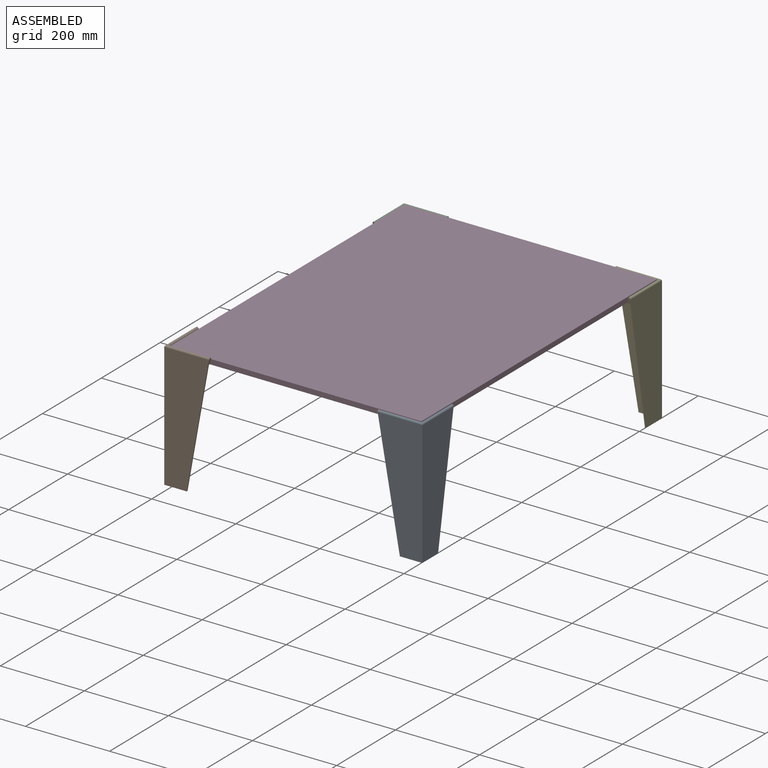
[diagram: assembled view]
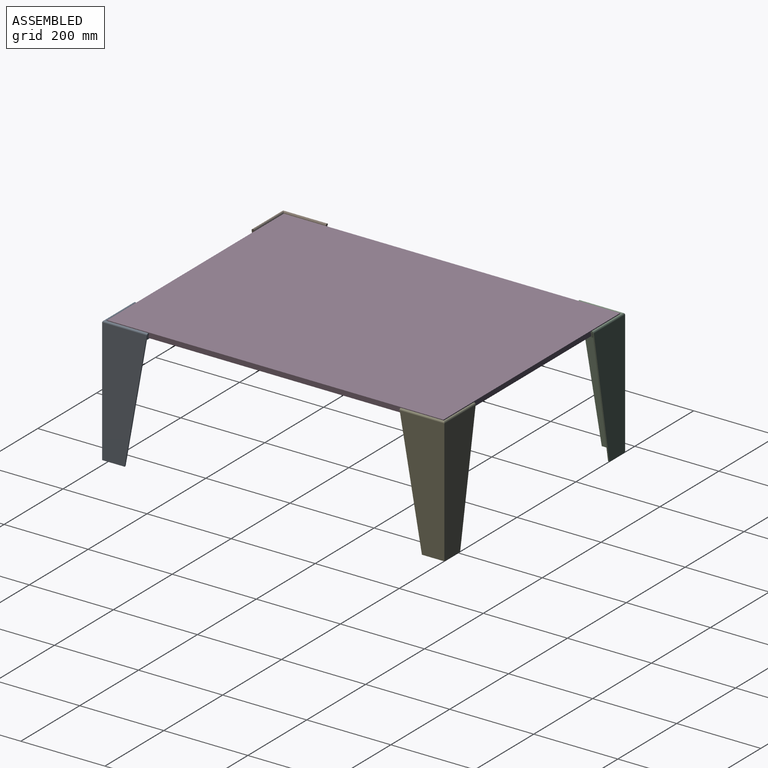
[diagram: assembled view, second angle]
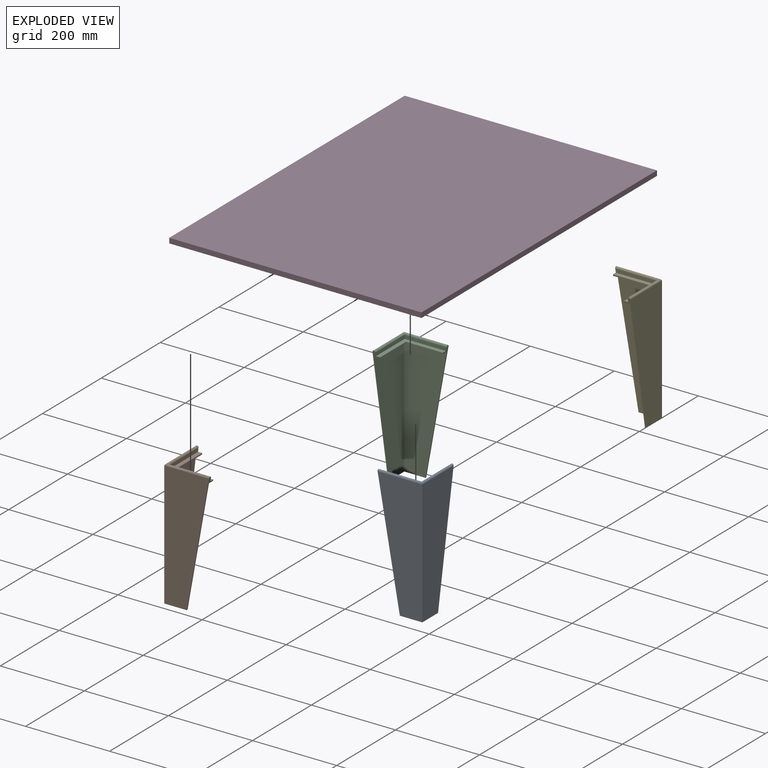
[diagram: exploded view]
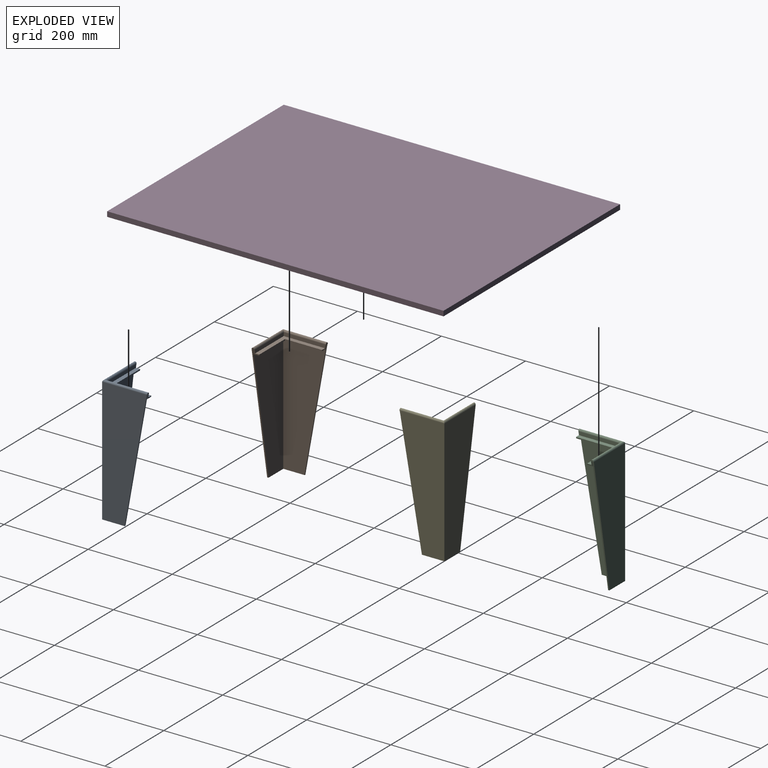
[diagram: exploded view, second angle]
ASSEMBLY  parts=5 mates=4
PART A: 24 faces, bbox 107x107x300 mm
  f0: plane 296x106.29mm, normal (-1,0,0), area 23648.4mm2, adj f8,f9,f16,f23
  f1: plane 103x12mm, normal (-1,0,0), area 1217.4mm2, adj f3,f6,f10,f13,f20,f21
  f2: plane 99.29x8mm, normal (1,0,0), area 788.6mm2, adj f4,f11,f15,f21
  f3: plane 7x3.97mm, normal (0,1,0), area 20.1mm2, adj f1,f7,f13,f15,f16,f20,f22
  f4: plane 97.86x97.86mm, normal (0,0,1), area 1857.2mm2, adj f2,f5,f11,f12,f19,f21
  f5: plane 87.86x3mm, normal (1,0,0), area 262.8mm2, adj f4,f6,f12,f21
  f6: plane 100.33x100.33mm, normal (0,0,-1), area 2439.5mm2, adj f1,f5,f10,f12,f19,f21
  f7: plane 297x104mm, normal (1,0,0), area 22864.4mm2, adj f3,f8,f13,f14,f22,f23
  f8: plane 53.5x53.5mm, normal (0,0,-1), area 312mm2, adj f0,f7,f9,f14,f19,f23
  f9: plane 296x106.29mm, normal (0,-1,0), area 23648.4mm2, adj f0,f8,f18,f19
  f10: plane 102.47x12mm, normal (0,-1,0), area 1216.7mm2, adj f1,f6,f13,f19
  f11: plane 99.29x8mm, normal (0,1,0), area 788.6mm2, adj f2,f4,f17,f19
  f12: plane 87.86x3mm, normal (0,1,0), area 262.8mm2, adj f4,f5,f6,f19
  f13: plane 104x103.47mm, normal (0,0,-1), area 206.5mm2, adj f1,f3,f7,f10,f14,f19
  f14: plane 297x103.47mm, normal (0,1,0), area 22863.8mm2, adj f7,f8,f13,f19
  f15: cylinder r=4mm len=103.5mm, axis (0,-1,0), area 585.4mm2, adj f2,f3,f16,f17,f20
  f16: cylinder r=4mm len=107mm, axis (0,-1,0), area 611.4mm2, adj f0,f3,f15,f18,f22
  f17: cylinder r=4mm len=103.49mm, axis (1,0,0), area 583.8mm2, adj f11,f15,f18,f19
  f18: cylinder r=4mm len=106.99mm, axis (1,0,0), area 609.8mm2, adj f9,f16,f17,f19
  f19: plane 299.97x53.49mm, normal (0.98,0,-0.18), area 986.5mm2, adj f4,f6,f8,f9,f10,f11,f12,f13
  f20: plane 3x0.71mm, normal (0,0,-1), area 2.1mm2, adj f1,f3,f15,f21
  f21: plane 13x11mm, normal (0,0.98,-0.18), area 64mm2, adj f1,f2,f4,f5,f6,f20
  f22: plane 3x0.71mm, normal (0,0,-1), area 2.1mm2, adj f3,f7,f16,f23
  f23: plane 296x52.79mm, normal (0,0.98,-0.18), area 902mm2, adj f0,f7,f8,f22
PART B: same geometry as A
PART C: same geometry as A
PART D: 6 faces, bbox 600x800x12 mm
  f0: plane 600x12mm, normal (0,-1,0), area 7200mm2, adj f1,f3,f4,f5
  f1: plane 800x12mm, normal (1,0,0), area 9600mm2, adj f0,f2,f4,f5
  f2: plane 600x12mm, normal (0,1,0), area 7200mm2, adj f1,f3,f4,f5
  f3: plane 800x12mm, normal (-1,0,0), area 9600mm2, adj f0,f2,f4,f5
  f4: plane 800x600mm, normal (0,0,1), area 480000mm2, adj f0,f1,f2,f3
  f5: plane 800x600mm, normal (0,0,-1), area 480000mm2, adj f0,f1,f2,f3
PART E: same geometry as A
PLACE A rot(axis=(0,0,1),90deg) t=(554.36,-46.58,233.15)mm
PLACE B t=(-45.64,-46.58,237.15)mm fixed
PLACE C rot(axis=(0,0,-1),90deg) t=(-45.64,753.42,233.15)mm
PLACE D t=(254.36,353.42,-216.85)mm
PLACE E rot(axis=(0,0,-1),180deg) t=(554.36,753.42,233.15)mm
MATE fastened E.f4 <-> D.f5  axis (0,0,1) through (554.36,753.42,233.15)mm
MATE fastened B.f2 <-> D.f3  axis (1,0,0) through (-45.64,-46.58,245.15)mm
MATE fastened A.f4 <-> D.f5  axis (0,0,1) through (554.36,-46.58,233.15)mm
MATE fastened D.f5 <-> C.f4  axis (0,0,-1) through (-45.64,753.42,233.15)mm
